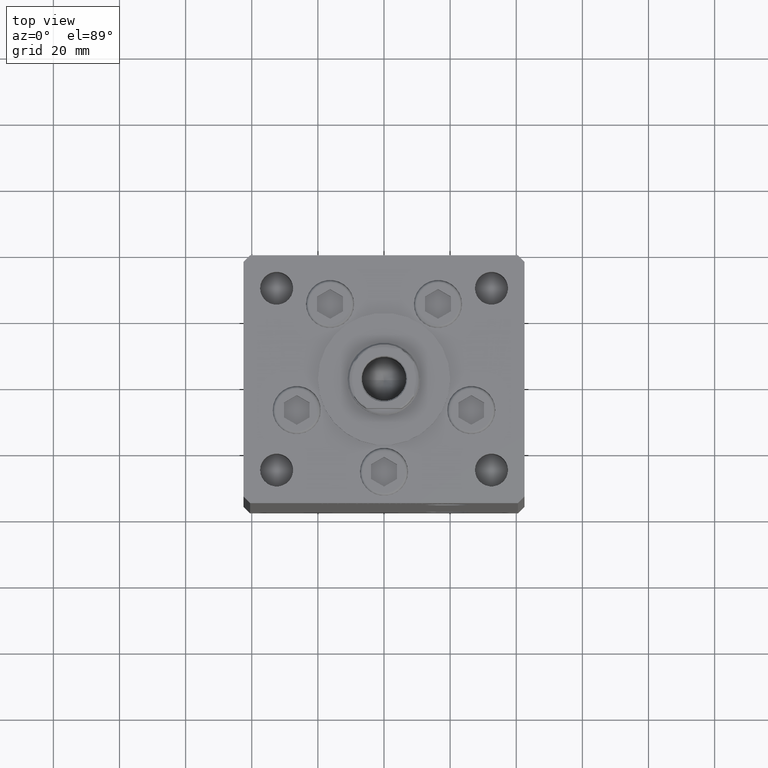
[diagram: clean part render]
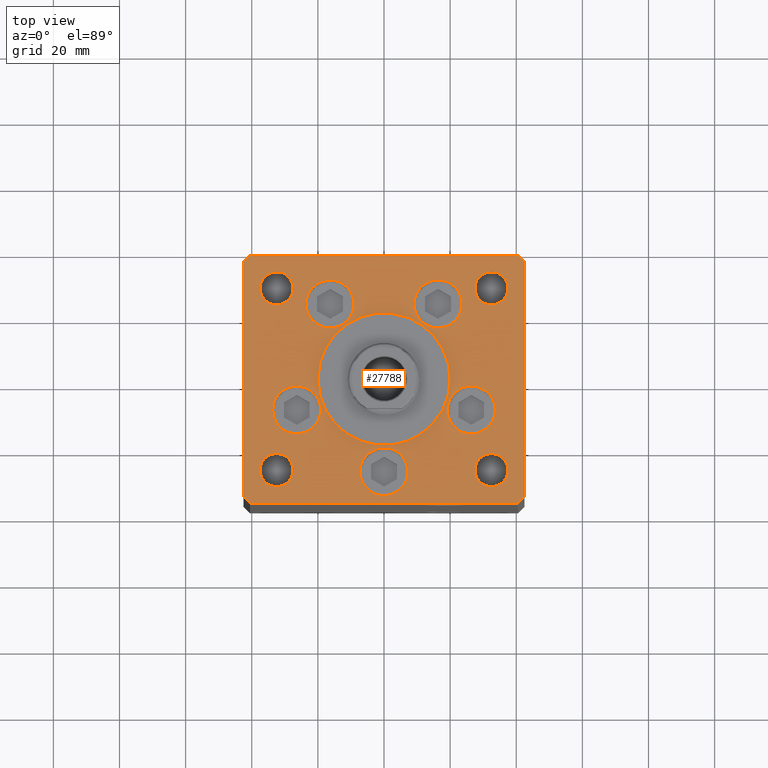
[diagram: same view with one face highlighted and labeled with its STEP entity id]
A machine part, top view. The second image highlights one B-rep face of the part: STEP entity #27788.
In plain terms, the highlighted planar face has unit normal (0, 0, 1).
Its self-contained STEP definition (entity closure, byte-faithful):
#194 = AXIS2_PLACEMENT_3D ( 'NONE', #51327, #26816, #42892 ) ;
#225 = EDGE_CURVE ( 'NONE', #26594, #19302, #12412, .T. ) ;
#1057 = EDGE_LOOP ( 'NONE', ( #10279, #34420, #20370, #38377, #5828, #51939, #31504, #19454 ) ) ;
#1142 = AXIS2_PLACEMENT_3D ( 'NONE', #50353, #49580, #50093 ) ;
#1621 = CARTESIAN_POINT ( 'NONE',  ( 32.50000000000000000, 27.49999999999999645, 0.000000000000000000 ) ) ;
#1839 = DIRECTION ( 'NONE',  ( -1.000000000000000000, 0.000000000000000000, 0.000000000000000000 ) ) ;
#2112 = CARTESIAN_POINT ( 'NONE',  ( 0.000000000000000000, -6.938893903907228378E-15, 0.000000000000000000 ) ) ;
#2212 = CIRCLE ( 'NONE', #36880, 20.00000000000000000 ) ;
#2326 = CARTESIAN_POINT ( 'NONE',  ( 16.32291334290544071, 22.74999999999999289, 0.000000000000000000 ) ) ;
#2979 = ORIENTED_EDGE ( 'NONE', *, *, #33874, .F. ) ;
#3331 = EDGE_LOOP ( 'NONE', ( #44804, #33901 ) ) ;
#3372 = VERTEX_POINT ( 'NONE', #6848 ) ;
#3549 = CARTESIAN_POINT ( 'NONE',  ( -37.50000000000000711, -27.50000000000000355, 0.000000000000000000 ) ) ;
#3597 = DIRECTION ( 'NONE',  ( 1.000000000000000000, 0.000000000000000000, 0.000000000000000000 ) ) ;
#3611 = EDGE_CURVE ( 'NONE', #28520, #32784, #25314, .T. ) ;
#3634 = CARTESIAN_POINT ( 'NONE',  ( 16.32291334290544071, 22.74999999999999289, 0.000000000000000000 ) ) ;
#3707 = VERTEX_POINT ( 'NONE', #8925 ) ;
#3777 = ORIENTED_EDGE ( 'NONE', *, *, #38668, .F. ) ;
#4343 = FACE_BOUND ( 'NONE', #7208, .T. ) ;
#4371 = EDGE_LOOP ( 'NONE', ( #30010, #33662 ) ) ;
#4469 = EDGE_CURVE ( 'NONE', #38441, #49994, #34485, .T. ) ;
#5139 = EDGE_CURVE ( 'NONE', #7183, #52063, #8335, .T. ) ;
#5190 = VERTEX_POINT ( 'NONE', #24775 ) ;
#5306 = CARTESIAN_POINT ( 'NONE',  ( 33.64865316429777664, -9.333333333333330373, 0.000000000000000000 ) ) ;
#5679 = EDGE_LOOP ( 'NONE', ( #38639, #43025 ) ) ;
#5828 = ORIENTED_EDGE ( 'NONE', *, *, #225, .T. ) ;
#6018 = AXIS2_PLACEMENT_3D ( 'NONE', #28171, #27917, #3597 ) ;
#6025 = DIRECTION ( 'NONE',  ( 0.000000000000000000, 0.000000000000000000, 1.000000000000000000 ) ) ;
#6080 = VERTEX_POINT ( 'NONE', #25567 ) ;
#6149 = EDGE_CURVE ( 'NONE', #19302, #16769, #42417, .T. ) ;
#6403 = VECTOR ( 'NONE', #13802, 1000.000000000000000 ) ;
#6473 = CARTESIAN_POINT ( 'NONE',  ( 32.50000000000000000, -27.50000000000000355, 0.000000000000000000 ) ) ;
#6726 = CIRCLE ( 'NONE', #42141, 7.250000000000000000 ) ;
#6848 = CARTESIAN_POINT ( 'NONE',  ( 7.250000000000000000, -28.00000000000000000, 0.000000000000000000 ) ) ;
#7153 = LINE ( 'NONE', #43588, #43389 ) ;
#7183 = VERTEX_POINT ( 'NONE', #47699 ) ;
#7208 = EDGE_LOOP ( 'NONE', ( #18797, #48247 ) ) ;
#7789 = EDGE_LOOP ( 'NONE', ( #38456, #17613 ) ) ;
#7864 = ORIENTED_EDGE ( 'NONE', *, *, #18989, .F. ) ;
#8058 = EDGE_LOOP ( 'NONE', ( #7864, #33276 ) ) ;
#8205 = ORIENTED_EDGE ( 'NONE', *, *, #10289, .T. ) ;
#8335 = CIRCLE ( 'NONE', #42061, 7.249999999999999112 ) ;
#8586 = FACE_BOUND ( 'NONE', #21263, .T. ) ;
#8925 = CARTESIAN_POINT ( 'NONE',  ( -37.50000000000000711, 27.50000000000000711, 0.000000000000000000 ) ) ;
#8968 = CARTESIAN_POINT ( 'NONE',  ( 42.50000000000001421, 35.50000000000002132, 0.000000000000000000 ) ) ;
#9095 = EDGE_CURVE ( 'NONE', #5190, #37892, #20984, .T. ) ;
#9226 = DIRECTION ( 'NONE',  ( 1.000000000000000000, 0.000000000000000000, 0.000000000000000000 ) ) ;
#10061 = CIRCLE ( 'NONE', #12592, 7.249999999999999112 ) ;
#10279 = ORIENTED_EDGE ( 'NONE', *, *, #3611, .T. ) ;
#10289 = EDGE_CURVE ( 'NONE', #43144, #15445, #18481, .T. ) ;
#10308 = EDGE_CURVE ( 'NONE', #19574, #50247, #10061, .T. ) ;
#10498 = DIRECTION ( 'NONE',  ( 1.000000000000000000, 0.000000000000000000, 0.000000000000000000 ) ) ;
#10573 = DIRECTION ( 'NONE',  ( 1.000000000000000000, 0.000000000000000000, 0.000000000000000000 ) ) ;
#11042 = CARTESIAN_POINT ( 'NONE',  ( -32.50000000000000000, -27.50000000000000355, 0.000000000000000000 ) ) ;
#11089 = CARTESIAN_POINT ( 'NONE',  ( -26.39865316429777664, -9.333333333333330373, 0.000000000000000000 ) ) ;
#11290 = AXIS2_PLACEMENT_3D ( 'NONE', #45377, #31767, #9226 ) ;
#11412 = DIRECTION ( 'NONE',  ( 1.000000000000000000, 0.000000000000000000, 0.000000000000000000 ) ) ;
#11581 = VECTOR ( 'NONE', #48830, 1000.000000000000000 ) ;
#11809 = EDGE_CURVE ( 'NONE', #14698, #29652, #13456, .T. ) ;
#12412 = LINE ( 'NONE', #8968, #11581 ) ;
#12592 = AXIS2_PLACEMENT_3D ( 'NONE', #11089, #31419, #34845 ) ;
#13456 = CIRCLE ( 'NONE', #40441, 7.249999999999999112 ) ;
#13465 = ORIENTED_EDGE ( 'NONE', *, *, #44388, .T. ) ;
#13802 = DIRECTION ( 'NONE',  ( 9.773090005503145261E-17, 1.000000000000000000, 0.000000000000000000 ) ) ;
#13829 = CARTESIAN_POINT ( 'NONE',  ( -27.50000000000000000, 27.50000000000000711, 0.000000000000000000 ) ) ;
#14073 = CIRCLE ( 'NONE', #30962, 4.999999999999997335 ) ;
#14350 = CARTESIAN_POINT ( 'NONE',  ( 40.50000000000000711, 37.50000000000000711, 0.000000000000000000 ) ) ;
#14470 = LINE ( 'NONE', #42706, #36100 ) ;
#14698 = VERTEX_POINT ( 'NONE', #24337 ) ;
#15091 = VERTEX_POINT ( 'NONE', #20832 ) ;
#15445 = VERTEX_POINT ( 'NONE', #24674 ) ;
#15505 = CARTESIAN_POINT ( 'NONE',  ( -40.50000000000000000, 37.49999999999997158, 0.000000000000000000 ) ) ;
#16252 = DIRECTION ( 'NONE',  ( -0.000000000000000000, 0.000000000000000000, 1.000000000000000000 ) ) ;
#16487 = CIRCLE ( 'NONE', #34192, 7.249999999999999112 ) ;
#16769 = VERTEX_POINT ( 'NONE', #15505 ) ;
#16870 = CIRCLE ( 'NONE', #45506, 4.999999999999997335 ) ;
#16929 = EDGE_CURVE ( 'NONE', #41755, #3707, #26371, .T. ) ;
#17034 = FACE_BOUND ( 'NONE', #5679, .T. ) ;
#17096 = EDGE_CURVE ( 'NONE', #32784, #15091, #23637, .T. ) ;
#17303 = ORIENTED_EDGE ( 'NONE', *, *, #4469, .F. ) ;
#17425 = CARTESIAN_POINT ( 'NONE',  ( -42.50000000000000000, -35.50000000000004263, 0.000000000000000000 ) ) ;
#17613 = ORIENTED_EDGE ( 'NONE', *, *, #5139, .F. ) ;
#17663 = CARTESIAN_POINT ( 'NONE',  ( 32.50000000000000000, 27.49999999999999645, 0.000000000000000000 ) ) ;
#18194 = DIRECTION ( 'NONE',  ( 1.000000000000000000, 0.000000000000000000, 0.000000000000000000 ) ) ;
#18481 = CIRCLE ( 'NONE', #42934, 4.999999999999997335 ) ;
#18797 = ORIENTED_EDGE ( 'NONE', *, *, #34017, .F. ) ;
#18971 = DIRECTION ( 'NONE',  ( -1.000000000000000000, 0.000000000000000000, 0.000000000000000000 ) ) ;
#18989 = EDGE_CURVE ( 'NONE', #3372, #31476, #47505, .T. ) ;
#19053 = DIRECTION ( 'NONE',  ( 0.000000000000000000, 0.000000000000000000, 1.000000000000000000 ) ) ;
#19302 = VERTEX_POINT ( 'NONE', #14350 ) ;
#19454 = ORIENTED_EDGE ( 'NONE', *, *, #37789, .T. ) ;
#19574 = VERTEX_POINT ( 'NONE', #45436 ) ;
#19636 = CARTESIAN_POINT ( 'NONE',  ( 0.000000000000000000, -28.00000000000000000, 0.000000000000000000 ) ) ;
#19859 = DIRECTION ( 'NONE',  ( 0.000000000000000000, 0.000000000000000000, 1.000000000000000000 ) ) ;
#20370 = ORIENTED_EDGE ( 'NONE', *, *, #48058, .T. ) ;
#20425 = CARTESIAN_POINT ( 'NONE',  ( -32.50000000000000000, 27.50000000000000711, 0.000000000000000000 ) ) ;
#20500 = EDGE_CURVE ( 'NONE', #50247, #19574, #29010, .T. ) ;
#20539 = CARTESIAN_POINT ( 'NONE',  ( 23.57291334290544071, 22.74999999999999289, 0.000000000000000000 ) ) ;
#20747 = FACE_BOUND ( 'NONE', #39921, .T. ) ;
#20761 = LINE ( 'NONE', #49235, #37270 ) ;
#20832 = CARTESIAN_POINT ( 'NONE',  ( 40.50000000000001421, -37.49999999999992184, 0.000000000000000000 ) ) ;
#20984 = CIRCLE ( 'NONE', #32740, 7.249999999999999112 ) ;
#21016 = FACE_BOUND ( 'NONE', #8058, .T. ) ;
#21202 = DIRECTION ( 'NONE',  ( 1.000000000000000000, 0.000000000000000000, 0.000000000000000000 ) ) ;
#21263 = EDGE_LOOP ( 'NONE', ( #17303, #2979 ) ) ;
#21370 = EDGE_CURVE ( 'NONE', #29652, #14698, #38269, .T. ) ;
#21589 = VERTEX_POINT ( 'NONE', #26656 ) ;
#22414 = DIRECTION ( 'NONE',  ( 1.000000000000000000, 0.000000000000000000, 0.000000000000000000 ) ) ;
#22570 = CARTESIAN_POINT ( 'NONE',  ( 37.50000000000000000, 27.49999999999999645, 0.000000000000000000 ) ) ;
#23031 = CARTESIAN_POINT ( 'NONE',  ( 26.39865316429777664, -9.333333333333330373, 0.000000000000000000 ) ) ;
#23034 = DIRECTION ( 'NONE',  ( -0.7071067811865536790, -0.7071067811865414665, 0.000000000000000000 ) ) ;
#23526 = CIRCLE ( 'NONE', #24386, 7.249999999999999112 ) ;
#23637 = LINE ( 'NONE', #39722, #37344 ) ;
#23739 = DIRECTION ( 'NONE',  ( 1.000000000000000000, 0.000000000000000000, 0.000000000000000000 ) ) ;
#23888 = DIRECTION ( 'NONE',  ( 1.000000000000000000, 1.370645709413773283E-15, 0.000000000000000000 ) ) ;
#24337 = CARTESIAN_POINT ( 'NONE',  ( 19.14865316429777664, -9.333333333333328596, 0.000000000000000000 ) ) ;
#24386 = AXIS2_PLACEMENT_3D ( 'NONE', #30838, #46661, #10498 ) ;
#24674 = CARTESIAN_POINT ( 'NONE',  ( 27.50000000000000355, -27.50000000000000355, 0.000000000000000000 ) ) ;
#24724 = DIRECTION ( 'NONE',  ( 0.7071067811865474617, 0.7071067811865474617, 0.000000000000000000 ) ) ;
#24775 = CARTESIAN_POINT ( 'NONE',  ( -23.57291334290544071, 22.74999999999999289, 0.000000000000000000 ) ) ;
#25314 = LINE ( 'NONE', #49303, #36121 ) ;
#25567 = CARTESIAN_POINT ( 'NONE',  ( 42.50000000000000711, -35.49999999999992895, 0.000000000000000000 ) ) ;
#25766 = CIRCLE ( 'NONE', #40893, 4.999999999999997335 ) ;
#25972 = CARTESIAN_POINT ( 'NONE',  ( -40.50000000000000711, -37.50000000000003553, 0.000000000000000000 ) ) ;
#26341 = DIRECTION ( 'NONE',  ( -1.000000000000000000, -4.283267841918041508E-16, 0.000000000000000000 ) ) ;
#26371 = CIRCLE ( 'NONE', #194, 5.000000000000004441 ) ;
#26594 = VERTEX_POINT ( 'NONE', #27943 ) ;
#26656 = CARTESIAN_POINT ( 'NONE',  ( -42.50000000000000711, 35.50000000000000000, 0.000000000000000000 ) ) ;
#26816 = DIRECTION ( 'NONE',  ( -0.000000000000000000, -0.000000000000000000, -1.000000000000000000 ) ) ;
#27761 = AXIS2_PLACEMENT_3D ( 'NONE', #27786, #52038, #11412 ) ;
#27786 = CARTESIAN_POINT ( 'NONE',  ( 0.000000000000000000, -6.938893903907228378E-15, 0.000000000000000000 ) ) ;
#27788 = ADVANCED_FACE ( 'NONE', ( #8586, #28920, #36061, #17034, #21016, #44998, #40786, #4343, #20747, #36579, #32862 ), #32349, .T. ) ;
#27917 = DIRECTION ( 'NONE',  ( 0.000000000000000000, 0.000000000000000000, 1.000000000000000000 ) ) ;
#27943 = CARTESIAN_POINT ( 'NONE',  ( 42.50000000000001421, 35.50000000000002132, 0.000000000000000000 ) ) ;
#28171 = CARTESIAN_POINT ( 'NONE',  ( -32.50000000000000000, -27.50000000000000355, 0.000000000000000000 ) ) ;
#28376 = EDGE_CURVE ( 'NONE', #16769, #21589, #7153, .T. ) ;
#28520 = VERTEX_POINT ( 'NONE', #17425 ) ;
#28561 = DIRECTION ( 'NONE',  ( 1.000000000000000000, 0.000000000000000000, 0.000000000000000000 ) ) ;
#28735 = EDGE_CURVE ( 'NONE', #15445, #43144, #25766, .T. ) ;
#28920 = FACE_BOUND ( 'NONE', #3331, .T. ) ;
#29010 = CIRCLE ( 'NONE', #11290, 7.249999999999999112 ) ;
#29257 = DIRECTION ( 'NONE',  ( 0.7071067811865487940, -0.7071067811865463515, 0.000000000000000000 ) ) ;
#29353 = CIRCLE ( 'NONE', #33566, 5.000000000000000888 ) ;
#29456 = VECTOR ( 'NONE', #26341, 1000.000000000000000 ) ;
#29625 = DIRECTION ( 'NONE',  ( 0.000000000000000000, 0.000000000000000000, 1.000000000000000000 ) ) ;
#29652 = VERTEX_POINT ( 'NONE', #5306 ) ;
#30010 = ORIENTED_EDGE ( 'NONE', *, *, #20500, .F. ) ;
#30285 = CARTESIAN_POINT ( 'NONE',  ( 40.50000000000000711, 37.50000000000000711, 0.000000000000000000 ) ) ;
#30756 = EDGE_CURVE ( 'NONE', #52063, #7183, #16487, .T. ) ;
#30838 = CARTESIAN_POINT ( 'NONE',  ( -16.32291334290544071, 22.74999999999999289, 0.000000000000000000 ) ) ;
#30962 = AXIS2_PLACEMENT_3D ( 'NONE', #17663, #33757, #22414 ) ;
#30991 = DIRECTION ( 'NONE',  ( 0.000000000000000000, 0.000000000000000000, 1.000000000000000000 ) ) ;
#31419 = DIRECTION ( 'NONE',  ( 0.000000000000000000, 0.000000000000000000, 1.000000000000000000 ) ) ;
#31476 = VERTEX_POINT ( 'NONE', #47553 ) ;
#31504 = ORIENTED_EDGE ( 'NONE', *, *, #28376, .T. ) ;
#31767 = DIRECTION ( 'NONE',  ( 0.000000000000000000, 0.000000000000000000, 1.000000000000000000 ) ) ;
#31919 = DIRECTION ( 'NONE',  ( 0.000000000000000000, 0.000000000000000000, 1.000000000000000000 ) ) ;
#31965 = EDGE_CURVE ( 'NONE', #6080, #26594, #49957, .T. ) ;
#32349 = PLANE ( 'NONE',  #34996 ) ;
#32740 = AXIS2_PLACEMENT_3D ( 'NONE', #35884, #31919, #44298 ) ;
#32784 = VERTEX_POINT ( 'NONE', #25972 ) ;
#32862 = FACE_BOUND ( 'NONE', #47555, .T. ) ;
#33066 = DIRECTION ( 'NONE',  ( -1.000000000000000000, 0.000000000000000000, 0.000000000000000000 ) ) ;
#33243 = ORIENTED_EDGE ( 'NONE', *, *, #28735, .T. ) ;
#33276 = ORIENTED_EDGE ( 'NONE', *, *, #43319, .F. ) ;
#33566 = AXIS2_PLACEMENT_3D ( 'NONE', #11042, #47460, #46667 ) ;
#33662 = ORIENTED_EDGE ( 'NONE', *, *, #10308, .F. ) ;
#33757 = DIRECTION ( 'NONE',  ( 0.000000000000000000, 0.000000000000000000, 1.000000000000000000 ) ) ;
#33825 = DIRECTION ( 'NONE',  ( 0.000000000000000000, 0.000000000000000000, 1.000000000000000000 ) ) ;
#33874 = EDGE_CURVE ( 'NONE', #49994, #38441, #2212, .T. ) ;
#33901 = ORIENTED_EDGE ( 'NONE', *, *, #9095, .F. ) ;
#34017 = EDGE_CURVE ( 'NONE', #44232, #45413, #14073, .T. ) ;
#34088 = EDGE_LOOP ( 'NONE', ( #45371, #13465 ) ) ;
#34192 = AXIS2_PLACEMENT_3D ( 'NONE', #2326, #6025, #18194 ) ;
#34420 = ORIENTED_EDGE ( 'NONE', *, *, #17096, .T. ) ;
#34485 = CIRCLE ( 'NONE', #27761, 20.00000000000000000 ) ;
#34845 = DIRECTION ( 'NONE',  ( 1.000000000000000000, 0.000000000000000000, 0.000000000000000000 ) ) ;
#34996 = AXIS2_PLACEMENT_3D ( 'NONE', #44477, #16252, #49222 ) ;
#35213 = DIRECTION ( 'NONE',  ( 1.000000000000000000, 0.000000000000000000, 0.000000000000000000 ) ) ;
#35884 = CARTESIAN_POINT ( 'NONE',  ( -16.32291334290544071, 22.74999999999999289, 0.000000000000000000 ) ) ;
#36034 = CARTESIAN_POINT ( 'NONE',  ( 20.00000000000000000, -4.489600305612522259E-15, 0.000000000000000000 ) ) ;
#36061 = FACE_BOUND ( 'NONE', #7789, .T. ) ;
#36100 = VECTOR ( 'NONE', #38760, 1000.000000000000000 ) ;
#36121 = VECTOR ( 'NONE', #29257, 1000.000000000000000 ) ;
#36175 = CARTESIAN_POINT ( 'NONE',  ( -20.00000000000000000, -6.938893903907228378E-15, 0.000000000000000000 ) ) ;
#36521 = DIRECTION ( 'NONE',  ( -0.000000000000000000, -0.000000000000000000, -1.000000000000000000 ) ) ;
#36579 = FACE_OUTER_BOUND ( 'NONE', #1057, .T. ) ;
#36880 = AXIS2_PLACEMENT_3D ( 'NONE', #2112, #33825, #10573 ) ;
#37270 = VECTOR ( 'NONE', #24724, 1000.000000000000114 ) ;
#37344 = VECTOR ( 'NONE', #23888, 1000.000000000000000 ) ;
#37496 = CARTESIAN_POINT ( 'NONE',  ( -19.14865316429777664, -9.333333333333330373, 0.000000000000000000 ) ) ;
#37789 = EDGE_CURVE ( 'NONE', #21589, #28520, #14470, .T. ) ;
#37892 = VERTEX_POINT ( 'NONE', #45243 ) ;
#38036 = DIRECTION ( 'NONE',  ( -0.000000000000000000, -0.000000000000000000, -1.000000000000000000 ) ) ;
#38269 = CIRCLE ( 'NONE', #39144, 7.249999999999999112 ) ;
#38377 = ORIENTED_EDGE ( 'NONE', *, *, #31965, .T. ) ;
#38441 = VERTEX_POINT ( 'NONE', #36175 ) ;
#38456 = ORIENTED_EDGE ( 'NONE', *, *, #30756, .F. ) ;
#38639 = ORIENTED_EDGE ( 'NONE', *, *, #21370, .F. ) ;
#38668 = EDGE_CURVE ( 'NONE', #38758, #50305, #29353, .T. ) ;
#38758 = VERTEX_POINT ( 'NONE', #39804 ) ;
#38760 = DIRECTION ( 'NONE',  ( 9.773090005503134168E-17, -1.000000000000000000, 0.000000000000000000 ) ) ;
#38810 = CIRCLE ( 'NONE', #47242, 5.000000000000004441 ) ;
#38978 = CARTESIAN_POINT ( 'NONE',  ( 37.50000000000000000, -27.50000000000000355, 0.000000000000000000 ) ) ;
#39144 = AXIS2_PLACEMENT_3D ( 'NONE', #23031, #19053, #39363 ) ;
#39363 = DIRECTION ( 'NONE',  ( 1.000000000000000000, 0.000000000000000000, 0.000000000000000000 ) ) ;
#39722 = CARTESIAN_POINT ( 'NONE',  ( -40.50000000000000711, -37.50000000000003553, 0.000000000000000000 ) ) ;
#39804 = CARTESIAN_POINT ( 'NONE',  ( -27.50000000000000000, -27.50000000000000355, 0.000000000000000000 ) ) ;
#39921 = EDGE_LOOP ( 'NONE', ( #3777, #44043 ) ) ;
#40292 = EDGE_CURVE ( 'NONE', #37892, #5190, #23526, .T. ) ;
#40441 = AXIS2_PLACEMENT_3D ( 'NONE', #48338, #19859, #28561 ) ;
#40595 = DIRECTION ( 'NONE',  ( 0.000000000000000000, 0.000000000000000000, 1.000000000000000000 ) ) ;
#40786 = FACE_BOUND ( 'NONE', #34088, .T. ) ;
#40893 = AXIS2_PLACEMENT_3D ( 'NONE', #6473, #51092, #18971 ) ;
#41437 = CIRCLE ( 'NONE', #6018, 5.000000000000000888 ) ;
#41755 = VERTEX_POINT ( 'NONE', #13829 ) ;
#42061 = AXIS2_PLACEMENT_3D ( 'NONE', #3634, #40595, #23739 ) ;
#42141 = AXIS2_PLACEMENT_3D ( 'NONE', #19636, #30991, #35213 ) ;
#42417 = LINE ( 'NONE', #30285, #29456 ) ;
#42706 = CARTESIAN_POINT ( 'NONE',  ( -42.50000000000000711, 35.50000000000000000, 0.000000000000000000 ) ) ;
#42892 = DIRECTION ( 'NONE',  ( -1.000000000000000000, 0.000000000000000000, 0.000000000000000000 ) ) ;
#42934 = AXIS2_PLACEMENT_3D ( 'NONE', #49636, #38036, #1839 ) ;
#43025 = ORIENTED_EDGE ( 'NONE', *, *, #11809, .F. ) ;
#43144 = VERTEX_POINT ( 'NONE', #38978 ) ;
#43319 = EDGE_CURVE ( 'NONE', #31476, #3372, #6726, .T. ) ;
#43389 = VECTOR ( 'NONE', #23034, 1000.000000000000000 ) ;
#43553 = EDGE_CURVE ( 'NONE', #45413, #44232, #16870, .T. ) ;
#43588 = CARTESIAN_POINT ( 'NONE',  ( -40.50000000000000000, 37.49999999999997158, 0.000000000000000000 ) ) ;
#44043 = ORIENTED_EDGE ( 'NONE', *, *, #48737, .F. ) ;
#44232 = VERTEX_POINT ( 'NONE', #22570 ) ;
#44298 = DIRECTION ( 'NONE',  ( 1.000000000000000000, 0.000000000000000000, 0.000000000000000000 ) ) ;
#44388 = EDGE_CURVE ( 'NONE', #3707, #41755, #38810, .T. ) ;
#44477 = CARTESIAN_POINT ( 'NONE',  ( 0.000000000000000000, 0.000000000000000000, 0.000000000000000000 ) ) ;
#44804 = ORIENTED_EDGE ( 'NONE', *, *, #40292, .F. ) ;
#44998 = FACE_BOUND ( 'NONE', #4371, .T. ) ;
#45243 = CARTESIAN_POINT ( 'NONE',  ( -9.072913342905442491, 22.74999999999999289, 0.000000000000000000 ) ) ;
#45371 = ORIENTED_EDGE ( 'NONE', *, *, #16929, .T. ) ;
#45377 = CARTESIAN_POINT ( 'NONE',  ( -26.39865316429777664, -9.333333333333330373, 0.000000000000000000 ) ) ;
#45412 = CARTESIAN_POINT ( 'NONE',  ( 27.50000000000000355, 27.49999999999999645, 0.000000000000000000 ) ) ;
#45413 = VERTEX_POINT ( 'NONE', #45412 ) ;
#45436 = CARTESIAN_POINT ( 'NONE',  ( -33.64865316429777664, -9.333333333333328596, 0.000000000000000000 ) ) ;
#45506 = AXIS2_PLACEMENT_3D ( 'NONE', #1621, #29625, #21202 ) ;
#46661 = DIRECTION ( 'NONE',  ( 0.000000000000000000, 0.000000000000000000, 1.000000000000000000 ) ) ;
#46667 = DIRECTION ( 'NONE',  ( 1.000000000000000000, 0.000000000000000000, 0.000000000000000000 ) ) ;
#47242 = AXIS2_PLACEMENT_3D ( 'NONE', #20425, #36521, #33066 ) ;
#47460 = DIRECTION ( 'NONE',  ( 0.000000000000000000, 0.000000000000000000, 1.000000000000000000 ) ) ;
#47505 = CIRCLE ( 'NONE', #1142, 7.250000000000000000 ) ;
#47553 = CARTESIAN_POINT ( 'NONE',  ( -7.250000000000000000, -28.00000000000000000, 0.000000000000000000 ) ) ;
#47555 = EDGE_LOOP ( 'NONE', ( #8205, #33243 ) ) ;
#47699 = CARTESIAN_POINT ( 'NONE',  ( 9.072913342905442491, 22.74999999999999289, 0.000000000000000000 ) ) ;
#48058 = EDGE_CURVE ( 'NONE', #15091, #6080, #20761, .T. ) ;
#48247 = ORIENTED_EDGE ( 'NONE', *, *, #43553, .F. ) ;
#48338 = CARTESIAN_POINT ( 'NONE',  ( 26.39865316429777664, -9.333333333333330373, 0.000000000000000000 ) ) ;
#48737 = EDGE_CURVE ( 'NONE', #50305, #38758, #41437, .T. ) ;
#48830 = DIRECTION ( 'NONE',  ( -0.7071067811865524577, 0.7071067811865426878, 0.000000000000000000 ) ) ;
#49222 = DIRECTION ( 'NONE',  ( 1.000000000000000000, 0.000000000000000000, 0.000000000000000000 ) ) ;
#49235 = CARTESIAN_POINT ( 'NONE',  ( 40.50000000000001421, -37.49999999999992184, 0.000000000000000000 ) ) ;
#49303 = CARTESIAN_POINT ( 'NONE',  ( -42.50000000000000000, -35.50000000000004263, 0.000000000000000000 ) ) ;
#49580 = DIRECTION ( 'NONE',  ( 0.000000000000000000, 0.000000000000000000, 1.000000000000000000 ) ) ;
#49636 = CARTESIAN_POINT ( 'NONE',  ( 32.50000000000000000, -27.50000000000000355, 0.000000000000000000 ) ) ;
#49957 = LINE ( 'NONE', #50473, #6403 ) ;
#49994 = VERTEX_POINT ( 'NONE', #36034 ) ;
#50093 = DIRECTION ( 'NONE',  ( 1.000000000000000000, 0.000000000000000000, 0.000000000000000000 ) ) ;
#50247 = VERTEX_POINT ( 'NONE', #37496 ) ;
#50305 = VERTEX_POINT ( 'NONE', #3549 ) ;
#50353 = CARTESIAN_POINT ( 'NONE',  ( 0.000000000000000000, -28.00000000000000000, 0.000000000000000000 ) ) ;
#50473 = CARTESIAN_POINT ( 'NONE',  ( 42.50000000000000711, -35.49999999999992895, 0.000000000000000000 ) ) ;
#51092 = DIRECTION ( 'NONE',  ( -0.000000000000000000, -0.000000000000000000, -1.000000000000000000 ) ) ;
#51327 = CARTESIAN_POINT ( 'NONE',  ( -32.50000000000000000, 27.50000000000000711, 0.000000000000000000 ) ) ;
#51939 = ORIENTED_EDGE ( 'NONE', *, *, #6149, .T. ) ;
#52038 = DIRECTION ( 'NONE',  ( 0.000000000000000000, 0.000000000000000000, 1.000000000000000000 ) ) ;
#52063 = VERTEX_POINT ( 'NONE', #20539 ) ;